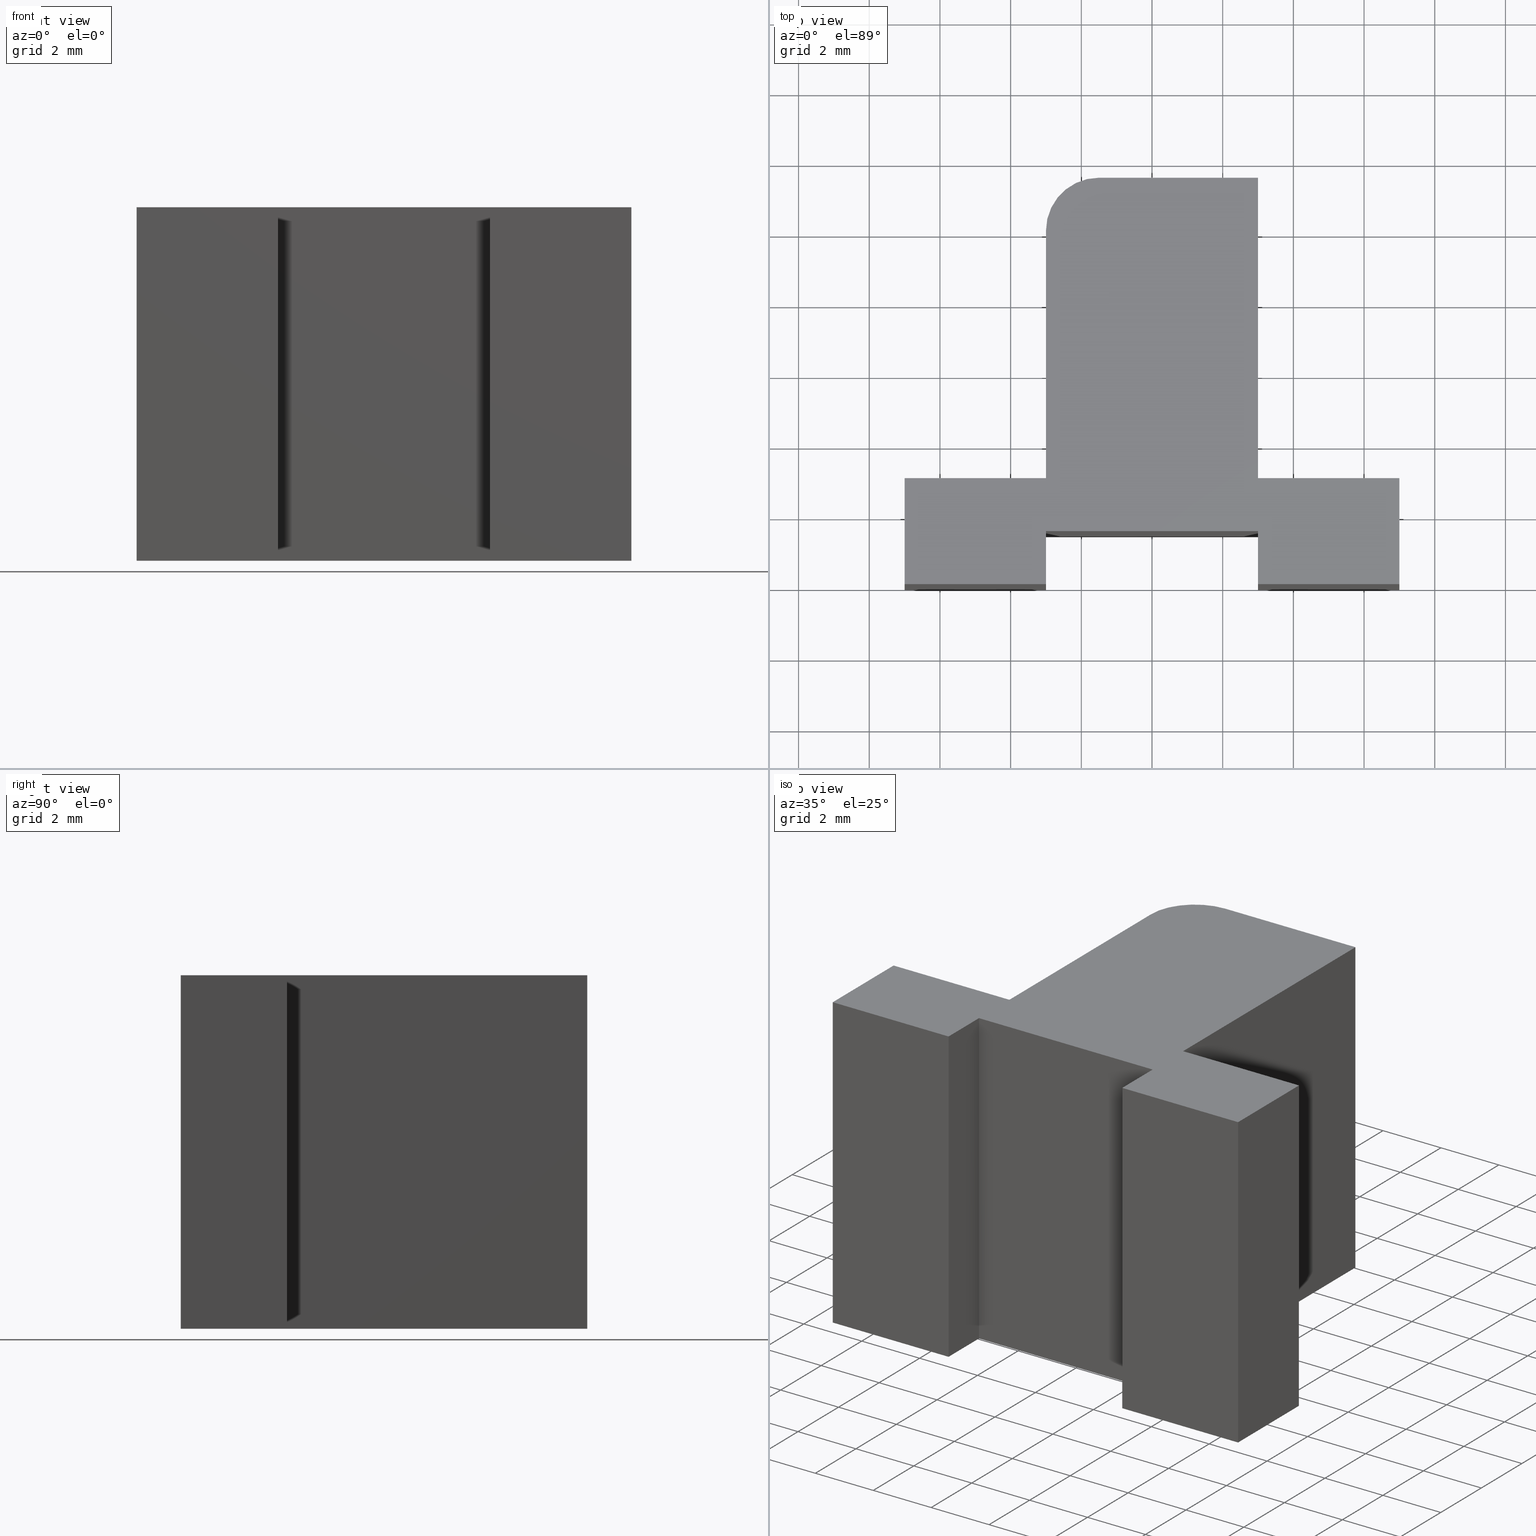
[diagram: canonical four-view strip — front | top / right | iso, engineering-drawing reading convention]
A machine part, canonical four-view strip (front | top / right | iso — engineering-drawing reading convention). The complete STEP part file that produces these views, byte-faithful:
ISO-10303-21;
HEADER;
/* Generated by software containing ST-Developer
 * from STEP Tools, Inc. (www.steptools.com) 
 */

FILE_DESCRIPTION(
/* description */ (''),
/* implementation_level */ '2;1');

FILE_NAME(
/* name */ 
'H:\\Eigene Dateien\\CAD Workspace Vault\\CAD\\E_3_Nocken\\E_3_01_Aufs
chwei\X\DFnocke\\01_Rund\\E_3_01_01_02_00_WKZ-0207.stp',
/* time_stamp */ '2024-05-16T11:08:24+02:00',
/* author */ ('dfischer'),
/* organization */ (''),
/* preprocessor_version */ 'ST-DEVELOPER v18.1',
/* originating_system */ 'Autodesk Inventor 2021',
/* authorisation */ '');

FILE_SCHEMA (('AUTOMOTIVE_DESIGN { 1 0 10303 214 3 1 1 }'));
ENDSEC;

DATA;
#10=MECHANICAL_DESIGN_GEOMETRIC_PRESENTATION_REPRESENTATION('',(#13),#488);
#11=SHAPE_REPRESENTATION_RELATIONSHIP('SRR','None',#495,#12);
#12=ADVANCED_BREP_SHAPE_REPRESENTATION('',(#14),#487);
#13=STYLED_ITEM('',(#504),#14);
#14=MANIFOLD_SOLID_BREP('Volumenk\X\F6rper1',#294);
#15=CYLINDRICAL_SURFACE('',#323,1.5);
#16=FACE_OUTER_BOUND('',#31,.T.);
#17=FACE_OUTER_BOUND('',#32,.T.);
#18=FACE_OUTER_BOUND('',#33,.T.);
#19=FACE_OUTER_BOUND('',#34,.T.);
#20=FACE_OUTER_BOUND('',#35,.T.);
#21=FACE_OUTER_BOUND('',#36,.T.);
#22=FACE_OUTER_BOUND('',#37,.T.);
#23=FACE_OUTER_BOUND('',#38,.T.);
#24=FACE_OUTER_BOUND('',#39,.T.);
#25=FACE_OUTER_BOUND('',#40,.T.);
#26=FACE_OUTER_BOUND('',#41,.T.);
#27=FACE_OUTER_BOUND('',#42,.T.);
#28=FACE_OUTER_BOUND('',#43,.T.);
#29=FACE_OUTER_BOUND('',#44,.T.);
#30=FACE_OUTER_BOUND('',#45,.T.);
#31=EDGE_LOOP('',(#187,#188,#189,#190,#191,#192,#193,#194,#195,#196,#197,
#198,#199));
#32=EDGE_LOOP('',(#200,#201,#202,#203));
#33=EDGE_LOOP('',(#204,#205,#206,#207));
#34=EDGE_LOOP('',(#208,#209,#210,#211));
#35=EDGE_LOOP('',(#212,#213,#214,#215));
#36=EDGE_LOOP('',(#216,#217,#218,#219));
#37=EDGE_LOOP('',(#220,#221,#222,#223));
#38=EDGE_LOOP('',(#224,#225,#226,#227));
#39=EDGE_LOOP('',(#228,#229,#230,#231));
#40=EDGE_LOOP('',(#232,#233,#234,#235));
#41=EDGE_LOOP('',(#236,#237,#238,#239));
#42=EDGE_LOOP('',(#240,#241,#242,#243));
#43=EDGE_LOOP('',(#244,#245,#246,#247));
#44=EDGE_LOOP('',(#248,#249,#250,#251));
#45=EDGE_LOOP('',(#252,#253,#254,#255,#256,#257,#258,#259,#260,#261,#262,
#263,#264));
#46=CIRCLE('',#315,1.5);
#47=CIRCLE('',#324,1.5);
#48=LINE('',#408,#85);
#49=LINE('',#410,#86);
#50=LINE('',#412,#87);
#51=LINE('',#414,#88);
#52=LINE('',#416,#89);
#53=LINE('',#418,#90);
#54=LINE('',#420,#91);
#55=LINE('',#422,#92);
#56=LINE('',#424,#93);
#57=LINE('',#428,#94);
#58=LINE('',#430,#95);
#59=LINE('',#431,#96);
#60=LINE('',#435,#97);
#61=LINE('',#436,#98);
#62=LINE('',#437,#99);
#63=LINE('',#440,#100);
#64=LINE('',#441,#101);
#65=LINE('',#444,#102);
#66=LINE('',#445,#103);
#67=LINE('',#448,#104);
#68=LINE('',#449,#105);
#69=LINE('',#452,#106);
#70=LINE('',#453,#107);
#71=LINE('',#456,#108);
#72=LINE('',#457,#109);
#73=LINE('',#460,#110);
#74=LINE('',#461,#111);
#75=LINE('',#465,#112);
#76=LINE('',#468,#113);
#77=LINE('',#469,#114);
#78=LINE('',#472,#115);
#79=LINE('',#473,#116);
#80=LINE('',#476,#117);
#81=LINE('',#477,#118);
#82=LINE('',#480,#119);
#83=LINE('',#481,#120);
#84=LINE('',#483,#121);
#85=VECTOR('',#335,10.);
#86=VECTOR('',#336,10.);
#87=VECTOR('',#337,10.);
#88=VECTOR('',#338,10.);
#89=VECTOR('',#339,10.);
#90=VECTOR('',#340,10.);
#91=VECTOR('',#341,10.);
#92=VECTOR('',#342,10.);
#93=VECTOR('',#343,10.);
#94=VECTOR('',#346,10.);
#95=VECTOR('',#347,10.);
#96=VECTOR('',#348,10.);
#97=VECTOR('',#351,10.);
#98=VECTOR('',#352,10.);
#99=VECTOR('',#353,10.);
#100=VECTOR('',#356,10.);
#101=VECTOR('',#357,10.);
#102=VECTOR('',#360,10.);
#103=VECTOR('',#361,10.);
#104=VECTOR('',#364,10.);
#105=VECTOR('',#365,10.);
#106=VECTOR('',#368,10.);
#107=VECTOR('',#369,10.);
#108=VECTOR('',#372,10.);
#109=VECTOR('',#373,10.);
#110=VECTOR('',#376,10.);
#111=VECTOR('',#377,10.);
#112=VECTOR('',#382,10.);
#113=VECTOR('',#385,10.);
#114=VECTOR('',#386,10.);
#115=VECTOR('',#389,10.);
#116=VECTOR('',#390,10.);
#117=VECTOR('',#393,10.);
#118=VECTOR('',#394,10.);
#119=VECTOR('',#397,10.);
#120=VECTOR('',#398,10.);
#121=VECTOR('',#401,10.);
#122=VERTEX_POINT('',#406);
#123=VERTEX_POINT('',#407);
#124=VERTEX_POINT('',#409);
#125=VERTEX_POINT('',#411);
#126=VERTEX_POINT('',#413);
#127=VERTEX_POINT('',#415);
#128=VERTEX_POINT('',#417);
#129=VERTEX_POINT('',#419);
#130=VERTEX_POINT('',#421);
#131=VERTEX_POINT('',#423);
#132=VERTEX_POINT('',#425);
#133=VERTEX_POINT('',#427);
#134=VERTEX_POINT('',#429);
#135=VERTEX_POINT('',#433);
#136=VERTEX_POINT('',#434);
#137=VERTEX_POINT('',#439);
#138=VERTEX_POINT('',#443);
#139=VERTEX_POINT('',#447);
#140=VERTEX_POINT('',#451);
#141=VERTEX_POINT('',#455);
#142=VERTEX_POINT('',#459);
#143=VERTEX_POINT('',#463);
#144=VERTEX_POINT('',#467);
#145=VERTEX_POINT('',#471);
#146=VERTEX_POINT('',#475);
#147=VERTEX_POINT('',#479);
#148=EDGE_CURVE('',#122,#123,#48,.T.);
#149=EDGE_CURVE('',#124,#122,#49,.T.);
#150=EDGE_CURVE('',#125,#124,#50,.T.);
#151=EDGE_CURVE('',#126,#125,#51,.T.);
#152=EDGE_CURVE('',#127,#126,#52,.T.);
#153=EDGE_CURVE('',#128,#127,#53,.T.);
#154=EDGE_CURVE('',#129,#128,#54,.T.);
#155=EDGE_CURVE('',#130,#129,#55,.T.);
#156=EDGE_CURVE('',#131,#130,#56,.T.);
#157=EDGE_CURVE('',#132,#131,#46,.T.);
#158=EDGE_CURVE('',#133,#132,#57,.T.);
#159=EDGE_CURVE('',#134,#133,#58,.T.);
#160=EDGE_CURVE('',#123,#134,#59,.T.);
#161=EDGE_CURVE('',#135,#136,#60,.T.);
#162=EDGE_CURVE('',#136,#125,#61,.T.);
#163=EDGE_CURVE('',#135,#124,#62,.T.);
#164=EDGE_CURVE('',#136,#137,#63,.T.);
#165=EDGE_CURVE('',#137,#126,#64,.T.);
#166=EDGE_CURVE('',#137,#138,#65,.T.);
#167=EDGE_CURVE('',#138,#127,#66,.T.);
#168=EDGE_CURVE('',#138,#139,#67,.T.);
#169=EDGE_CURVE('',#139,#128,#68,.T.);
#170=EDGE_CURVE('',#139,#140,#69,.T.);
#171=EDGE_CURVE('',#140,#129,#70,.T.);
#172=EDGE_CURVE('',#140,#141,#71,.T.);
#173=EDGE_CURVE('',#141,#130,#72,.T.);
#174=EDGE_CURVE('',#141,#142,#73,.T.);
#175=EDGE_CURVE('',#142,#131,#74,.T.);
#176=EDGE_CURVE('',#142,#143,#47,.T.);
#177=EDGE_CURVE('',#143,#132,#75,.T.);
#178=EDGE_CURVE('',#143,#144,#76,.T.);
#179=EDGE_CURVE('',#144,#133,#77,.T.);
#180=EDGE_CURVE('',#144,#145,#78,.T.);
#181=EDGE_CURVE('',#145,#134,#79,.T.);
#182=EDGE_CURVE('',#145,#146,#80,.T.);
#183=EDGE_CURVE('',#146,#123,#81,.T.);
#184=EDGE_CURVE('',#146,#147,#82,.T.);
#185=EDGE_CURVE('',#122,#147,#83,.T.);
#186=EDGE_CURVE('',#147,#135,#84,.T.);
#187=ORIENTED_EDGE('',*,*,#148,.F.);
#188=ORIENTED_EDGE('',*,*,#149,.F.);
#189=ORIENTED_EDGE('',*,*,#150,.F.);
#190=ORIENTED_EDGE('',*,*,#151,.F.);
#191=ORIENTED_EDGE('',*,*,#152,.F.);
#192=ORIENTED_EDGE('',*,*,#153,.F.);
#193=ORIENTED_EDGE('',*,*,#154,.F.);
#194=ORIENTED_EDGE('',*,*,#155,.F.);
#195=ORIENTED_EDGE('',*,*,#156,.F.);
#196=ORIENTED_EDGE('',*,*,#157,.F.);
#197=ORIENTED_EDGE('',*,*,#158,.F.);
#198=ORIENTED_EDGE('',*,*,#159,.F.);
#199=ORIENTED_EDGE('',*,*,#160,.F.);
#200=ORIENTED_EDGE('',*,*,#161,.T.);
#201=ORIENTED_EDGE('',*,*,#162,.T.);
#202=ORIENTED_EDGE('',*,*,#150,.T.);
#203=ORIENTED_EDGE('',*,*,#163,.F.);
#204=ORIENTED_EDGE('',*,*,#164,.T.);
#205=ORIENTED_EDGE('',*,*,#165,.T.);
#206=ORIENTED_EDGE('',*,*,#151,.T.);
#207=ORIENTED_EDGE('',*,*,#162,.F.);
#208=ORIENTED_EDGE('',*,*,#166,.T.);
#209=ORIENTED_EDGE('',*,*,#167,.T.);
#210=ORIENTED_EDGE('',*,*,#152,.T.);
#211=ORIENTED_EDGE('',*,*,#165,.F.);
#212=ORIENTED_EDGE('',*,*,#168,.T.);
#213=ORIENTED_EDGE('',*,*,#169,.T.);
#214=ORIENTED_EDGE('',*,*,#153,.T.);
#215=ORIENTED_EDGE('',*,*,#167,.F.);
#216=ORIENTED_EDGE('',*,*,#170,.T.);
#217=ORIENTED_EDGE('',*,*,#171,.T.);
#218=ORIENTED_EDGE('',*,*,#154,.T.);
#219=ORIENTED_EDGE('',*,*,#169,.F.);
#220=ORIENTED_EDGE('',*,*,#172,.T.);
#221=ORIENTED_EDGE('',*,*,#173,.T.);
#222=ORIENTED_EDGE('',*,*,#155,.T.);
#223=ORIENTED_EDGE('',*,*,#171,.F.);
#224=ORIENTED_EDGE('',*,*,#174,.T.);
#225=ORIENTED_EDGE('',*,*,#175,.T.);
#226=ORIENTED_EDGE('',*,*,#156,.T.);
#227=ORIENTED_EDGE('',*,*,#173,.F.);
#228=ORIENTED_EDGE('',*,*,#176,.T.);
#229=ORIENTED_EDGE('',*,*,#177,.T.);
#230=ORIENTED_EDGE('',*,*,#157,.T.);
#231=ORIENTED_EDGE('',*,*,#175,.F.);
#232=ORIENTED_EDGE('',*,*,#178,.T.);
#233=ORIENTED_EDGE('',*,*,#179,.T.);
#234=ORIENTED_EDGE('',*,*,#158,.T.);
#235=ORIENTED_EDGE('',*,*,#177,.F.);
#236=ORIENTED_EDGE('',*,*,#180,.T.);
#237=ORIENTED_EDGE('',*,*,#181,.T.);
#238=ORIENTED_EDGE('',*,*,#159,.T.);
#239=ORIENTED_EDGE('',*,*,#179,.F.);
#240=ORIENTED_EDGE('',*,*,#182,.T.);
#241=ORIENTED_EDGE('',*,*,#183,.T.);
#242=ORIENTED_EDGE('',*,*,#160,.T.);
#243=ORIENTED_EDGE('',*,*,#181,.F.);
#244=ORIENTED_EDGE('',*,*,#184,.T.);
#245=ORIENTED_EDGE('',*,*,#185,.F.);
#246=ORIENTED_EDGE('',*,*,#148,.T.);
#247=ORIENTED_EDGE('',*,*,#183,.F.);
#248=ORIENTED_EDGE('',*,*,#186,.T.);
#249=ORIENTED_EDGE('',*,*,#163,.T.);
#250=ORIENTED_EDGE('',*,*,#149,.T.);
#251=ORIENTED_EDGE('',*,*,#185,.T.);
#252=ORIENTED_EDGE('',*,*,#161,.F.);
#253=ORIENTED_EDGE('',*,*,#186,.F.);
#254=ORIENTED_EDGE('',*,*,#184,.F.);
#255=ORIENTED_EDGE('',*,*,#182,.F.);
#256=ORIENTED_EDGE('',*,*,#180,.F.);
#257=ORIENTED_EDGE('',*,*,#178,.F.);
#258=ORIENTED_EDGE('',*,*,#176,.F.);
#259=ORIENTED_EDGE('',*,*,#174,.F.);
#260=ORIENTED_EDGE('',*,*,#172,.F.);
#261=ORIENTED_EDGE('',*,*,#170,.F.);
#262=ORIENTED_EDGE('',*,*,#168,.F.);
#263=ORIENTED_EDGE('',*,*,#166,.F.);
#264=ORIENTED_EDGE('',*,*,#164,.F.);
#265=PLANE('',#314);
#266=PLANE('',#316);
#267=PLANE('',#317);
#268=PLANE('',#318);
#269=PLANE('',#319);
#270=PLANE('',#320);
#271=PLANE('',#321);
#272=PLANE('',#322);
#273=PLANE('',#325);
#274=PLANE('',#326);
#275=PLANE('',#327);
#276=PLANE('',#328);
#277=PLANE('',#329);
#278=PLANE('',#330);
#279=ADVANCED_FACE('',(#16),#265,.F.);
#280=ADVANCED_FACE('',(#17),#266,.T.);
#281=ADVANCED_FACE('',(#18),#267,.T.);
#282=ADVANCED_FACE('',(#19),#268,.T.);
#283=ADVANCED_FACE('',(#20),#269,.T.);
#284=ADVANCED_FACE('',(#21),#270,.T.);
#285=ADVANCED_FACE('',(#22),#271,.T.);
#286=ADVANCED_FACE('',(#23),#272,.T.);
#287=ADVANCED_FACE('',(#24),#15,.T.);
#288=ADVANCED_FACE('',(#25),#273,.T.);
#289=ADVANCED_FACE('',(#26),#274,.T.);
#290=ADVANCED_FACE('',(#27),#275,.T.);
#291=ADVANCED_FACE('',(#28),#276,.T.);
#292=ADVANCED_FACE('',(#29),#277,.T.);
#293=ADVANCED_FACE('',(#30),#278,.T.);
#294=CLOSED_SHELL('',(#279,#280,#281,#282,#283,#284,#285,#286,#287,#288,
#289,#290,#291,#292,#293));
#295=DERIVED_UNIT_ELEMENT(#297,1.);
#296=DERIVED_UNIT_ELEMENT(#490,3.);
#297=(
MASS_UNIT()
NAMED_UNIT(*)
SI_UNIT($,.GRAM.)
);
#298=DERIVED_UNIT((#295,#296));
#299=MEASURE_REPRESENTATION_ITEM('density measure',
POSITIVE_RATIO_MEASURE(8.03),#298);
#300=PROPERTY_DEFINITION_REPRESENTATION(#305,#302);
#301=PROPERTY_DEFINITION_REPRESENTATION(#306,#303);
#302=REPRESENTATION('material name',(#304),#487);
#303=REPRESENTATION('density',(#299),#487);
#304=DESCRIPTIVE_REPRESENTATION_ITEM('1.4301','1.4301');
#305=PROPERTY_DEFINITION('material property','material name',#497);
#306=PROPERTY_DEFINITION('material property','density of part',#497);
#307=DATE_TIME_ROLE('creation_date');
#308=APPLIED_DATE_AND_TIME_ASSIGNMENT(#309,#307,(#497));
#309=DATE_AND_TIME(#310,#311);
#310=CALENDAR_DATE(2011,21,10);
#311=LOCAL_TIME(0,0,0.,#312);
#312=COORDINATED_UNIVERSAL_TIME_OFFSET(0,0,.BEHIND.);
#313=AXIS2_PLACEMENT_3D('placement',#404,#331,#332);
#314=AXIS2_PLACEMENT_3D('',#405,#333,#334);
#315=AXIS2_PLACEMENT_3D('',#426,#344,#345);
#316=AXIS2_PLACEMENT_3D('',#432,#349,#350);
#317=AXIS2_PLACEMENT_3D('',#438,#354,#355);
#318=AXIS2_PLACEMENT_3D('',#442,#358,#359);
#319=AXIS2_PLACEMENT_3D('',#446,#362,#363);
#320=AXIS2_PLACEMENT_3D('',#450,#366,#367);
#321=AXIS2_PLACEMENT_3D('',#454,#370,#371);
#322=AXIS2_PLACEMENT_3D('',#458,#374,#375);
#323=AXIS2_PLACEMENT_3D('',#462,#378,#379);
#324=AXIS2_PLACEMENT_3D('',#464,#380,#381);
#325=AXIS2_PLACEMENT_3D('',#466,#383,#384);
#326=AXIS2_PLACEMENT_3D('',#470,#387,#388);
#327=AXIS2_PLACEMENT_3D('',#474,#391,#392);
#328=AXIS2_PLACEMENT_3D('',#478,#395,#396);
#329=AXIS2_PLACEMENT_3D('',#482,#399,#400);
#330=AXIS2_PLACEMENT_3D('',#484,#402,#403);
#331=DIRECTION('axis',(0.,0.,1.));
#332=DIRECTION('refdir',(1.,0.,0.));
#333=DIRECTION('center_axis',(0.,0.,1.));
#334=DIRECTION('ref_axis',(1.,0.,0.));
#335=DIRECTION('',(0.,1.,0.));
#336=DIRECTION('',(1.,0.,0.));
#337=DIRECTION('',(0.,-1.,0.));
#338=DIRECTION('',(1.,0.,0.));
#339=DIRECTION('',(0.,1.,0.));
#340=DIRECTION('',(1.,0.,0.));
#341=DIRECTION('',(0.,-1.,0.));
#342=DIRECTION('',(-1.,-2.77555756156289E-16,0.));
#343=DIRECTION('',(0.,-1.,0.));
#344=DIRECTION('center_axis',(0.,0.,1.));
#345=DIRECTION('ref_axis',(-9.25185853854298E-16,-1.,0.));
#346=DIRECTION('',(-1.,0.,0.));
#347=DIRECTION('',(0.,1.,0.));
#348=DIRECTION('',(-1.,2.77555756156289E-16,0.));
#349=DIRECTION('center_axis',(-1.,0.,0.));
#350=DIRECTION('ref_axis',(0.,0.,1.));
#351=DIRECTION('',(0.,1.,0.));
#352=DIRECTION('',(0.,0.,-1.));
#353=DIRECTION('',(0.,0.,-1.));
#354=DIRECTION('center_axis',(0.,-1.,0.));
#355=DIRECTION('ref_axis',(0.,0.,-1.));
#356=DIRECTION('',(-1.,0.,0.));
#357=DIRECTION('',(0.,0.,-1.));
#358=DIRECTION('center_axis',(1.,0.,0.));
#359=DIRECTION('ref_axis',(0.,0.,-1.));
#360=DIRECTION('',(0.,-1.,0.));
#361=DIRECTION('',(0.,0.,-1.));
#362=DIRECTION('center_axis',(0.,-1.,0.));
#363=DIRECTION('ref_axis',(0.,0.,-1.));
#364=DIRECTION('',(-1.,0.,0.));
#365=DIRECTION('',(0.,0.,-1.));
#366=DIRECTION('center_axis',(-1.,0.,0.));
#367=DIRECTION('ref_axis',(0.,0.,1.));
#368=DIRECTION('',(0.,1.,0.));
#369=DIRECTION('',(0.,0.,-1.));
#370=DIRECTION('center_axis',(-2.77555756156289E-16,1.,0.));
#371=DIRECTION('ref_axis',(0.,0.,1.));
#372=DIRECTION('',(1.,2.77555756156289E-16,0.));
#373=DIRECTION('',(0.,0.,-1.));
#374=DIRECTION('center_axis',(-1.,0.,0.));
#375=DIRECTION('ref_axis',(0.,0.,1.));
#376=DIRECTION('',(0.,1.,0.));
#377=DIRECTION('',(0.,0.,-1.));
#378=DIRECTION('center_axis',(0.,0.,1.));
#379=DIRECTION('ref_axis',(-9.25185853854298E-16,-1.,0.));
#380=DIRECTION('center_axis',(0.,0.,-1.));
#381=DIRECTION('ref_axis',(-9.25185853854298E-16,-1.,0.));
#382=DIRECTION('',(0.,0.,-1.));
#383=DIRECTION('center_axis',(0.,1.,0.));
#384=DIRECTION('ref_axis',(0.,0.,1.));
#385=DIRECTION('',(1.,0.,0.));
#386=DIRECTION('',(0.,0.,-1.));
#387=DIRECTION('center_axis',(1.,0.,0.));
#388=DIRECTION('ref_axis',(0.,0.,-1.));
#389=DIRECTION('',(0.,-1.,0.));
#390=DIRECTION('',(0.,0.,-1.));
#391=DIRECTION('center_axis',(2.77555756156289E-16,1.,0.));
#392=DIRECTION('ref_axis',(0.,0.,1.));
#393=DIRECTION('',(1.,-2.77555756156289E-16,0.));
#394=DIRECTION('',(0.,0.,-1.));
#395=DIRECTION('center_axis',(1.,0.,0.));
#396=DIRECTION('ref_axis',(0.,0.,-1.));
#397=DIRECTION('',(0.,-1.,0.));
#398=DIRECTION('',(0.,0.,1.));
#399=DIRECTION('center_axis',(0.,-1.,0.));
#400=DIRECTION('ref_axis',(0.,0.,-1.));
#401=DIRECTION('',(-1.,0.,0.));
#402=DIRECTION('center_axis',(0.,0.,1.));
#403=DIRECTION('ref_axis',(1.,0.,0.));
#404=CARTESIAN_POINT('',(0.,0.,0.));
#405=CARTESIAN_POINT('Origin',(0.0400855353960883,4.28982695881489,-5.));
#406=CARTESIAN_POINT('',(7.,0.,-5.));
#407=CARTESIAN_POINT('',(7.,3.,-5.));
#408=CARTESIAN_POINT('',(7.,3.,-5.));
#409=CARTESIAN_POINT('',(3.,0.,-5.));
#410=CARTESIAN_POINT('',(7.,0.,-5.));
#411=CARTESIAN_POINT('',(3.,1.5,-5.));
#412=CARTESIAN_POINT('',(3.,0.,-5.));
#413=CARTESIAN_POINT('',(-3.,1.5,-5.));
#414=CARTESIAN_POINT('',(3.,1.5,-5.));
#415=CARTESIAN_POINT('',(-3.,0.,-5.));
#416=CARTESIAN_POINT('',(-3.,1.5,-5.));
#417=CARTESIAN_POINT('',(-7.,0.,-5.));
#418=CARTESIAN_POINT('',(-3.,0.,-5.));
#419=CARTESIAN_POINT('',(-7.,3.,-5.));
#420=CARTESIAN_POINT('',(-7.,0.,-5.));
#421=CARTESIAN_POINT('',(-3.,3.,-5.));
#422=CARTESIAN_POINT('',(-7.,3.,-5.));
#423=CARTESIAN_POINT('',(-3.,10.,-5.));
#424=CARTESIAN_POINT('',(-3.,3.,-5.));
#425=CARTESIAN_POINT('',(-1.5,11.5,-5.));
#426=CARTESIAN_POINT('Origin',(-1.5,10.,-5.));
#427=CARTESIAN_POINT('',(3.,11.5,-5.));
#428=CARTESIAN_POINT('',(-1.5,11.5,-5.));
#429=CARTESIAN_POINT('',(3.,3.,-5.));
#430=CARTESIAN_POINT('',(3.,11.5,-5.));
#431=CARTESIAN_POINT('',(3.,3.,-5.));
#432=CARTESIAN_POINT('Origin',(3.,0.,0.));
#433=CARTESIAN_POINT('',(3.,0.,5.));
#434=CARTESIAN_POINT('',(3.,1.5,5.));
#435=CARTESIAN_POINT('',(3.,0.,5.));
#436=CARTESIAN_POINT('',(3.,1.5,0.));
#437=CARTESIAN_POINT('',(3.,0.,0.));
#438=CARTESIAN_POINT('Origin',(3.,1.5,0.));
#439=CARTESIAN_POINT('',(-3.,1.5,5.));
#440=CARTESIAN_POINT('',(3.,1.5,5.));
#441=CARTESIAN_POINT('',(-3.,1.5,0.));
#442=CARTESIAN_POINT('Origin',(-3.,1.5,0.));
#443=CARTESIAN_POINT('',(-3.,0.,5.));
#444=CARTESIAN_POINT('',(-3.,1.5,5.));
#445=CARTESIAN_POINT('',(-3.,0.,0.));
#446=CARTESIAN_POINT('Origin',(-3.,0.,0.));
#447=CARTESIAN_POINT('',(-7.,0.,5.));
#448=CARTESIAN_POINT('',(-3.,0.,5.));
#449=CARTESIAN_POINT('',(-7.,0.,0.));
#450=CARTESIAN_POINT('Origin',(-7.,0.,0.));
#451=CARTESIAN_POINT('',(-7.,3.,5.));
#452=CARTESIAN_POINT('',(-7.,0.,5.));
#453=CARTESIAN_POINT('',(-7.,3.,0.));
#454=CARTESIAN_POINT('Origin',(-7.,3.,0.));
#455=CARTESIAN_POINT('',(-3.,3.,5.));
#456=CARTESIAN_POINT('',(-7.,3.,5.));
#457=CARTESIAN_POINT('',(-3.,3.,0.));
#458=CARTESIAN_POINT('Origin',(-3.,3.,0.));
#459=CARTESIAN_POINT('',(-3.,10.,5.));
#460=CARTESIAN_POINT('',(-3.,3.,5.));
#461=CARTESIAN_POINT('',(-3.,10.,0.));
#462=CARTESIAN_POINT('Origin',(-1.5,10.,0.));
#463=CARTESIAN_POINT('',(-1.5,11.5,5.));
#464=CARTESIAN_POINT('Origin',(-1.5,10.,5.));
#465=CARTESIAN_POINT('',(-1.5,11.5,0.));
#466=CARTESIAN_POINT('Origin',(-1.5,11.5,0.));
#467=CARTESIAN_POINT('',(3.,11.5,5.));
#468=CARTESIAN_POINT('',(-1.5,11.5,5.));
#469=CARTESIAN_POINT('',(3.,11.5,0.));
#470=CARTESIAN_POINT('Origin',(3.,11.5,0.));
#471=CARTESIAN_POINT('',(3.,3.,5.));
#472=CARTESIAN_POINT('',(3.,11.5,5.));
#473=CARTESIAN_POINT('',(3.,3.,0.));
#474=CARTESIAN_POINT('Origin',(3.,3.,0.));
#475=CARTESIAN_POINT('',(7.,3.,5.));
#476=CARTESIAN_POINT('',(3.,3.,5.));
#477=CARTESIAN_POINT('',(7.,3.,0.));
#478=CARTESIAN_POINT('Origin',(7.,3.,0.));
#479=CARTESIAN_POINT('',(7.,0.,5.));
#480=CARTESIAN_POINT('',(7.,3.,5.));
#481=CARTESIAN_POINT('',(7.,0.,0.));
#482=CARTESIAN_POINT('Origin',(7.,0.,0.));
#483=CARTESIAN_POINT('',(7.,0.,5.));
#484=CARTESIAN_POINT('Origin',(0.0400855353960885,4.28982695881489,5.));
#485=UNCERTAINTY_MEASURE_WITH_UNIT(LENGTH_MEASURE(0.01),#489,
'DISTANCE_ACCURACY_VALUE',
'Maximum model space distance between geometric entities at asserted c
onnectivities');
#486=UNCERTAINTY_MEASURE_WITH_UNIT(LENGTH_MEASURE(0.01),#489,
'DISTANCE_ACCURACY_VALUE',
'Maximum model space distance between geometric entities at asserted c
onnectivities');
#487=(
GEOMETRIC_REPRESENTATION_CONTEXT(3)
GLOBAL_UNCERTAINTY_ASSIGNED_CONTEXT((#485))
GLOBAL_UNIT_ASSIGNED_CONTEXT((#489,#491,#492))
REPRESENTATION_CONTEXT('','3D')
);
#488=(
GEOMETRIC_REPRESENTATION_CONTEXT(3)
GLOBAL_UNCERTAINTY_ASSIGNED_CONTEXT((#486))
GLOBAL_UNIT_ASSIGNED_CONTEXT((#489,#491,#492))
REPRESENTATION_CONTEXT('','3D')
);
#489=(
LENGTH_UNIT()
NAMED_UNIT(*)
SI_UNIT(.MILLI.,.METRE.)
);
#490=(
LENGTH_UNIT()
NAMED_UNIT(*)
SI_UNIT(.CENTI.,.METRE.)
);
#491=(
NAMED_UNIT(*)
PLANE_ANGLE_UNIT()
SI_UNIT($,.RADIAN.)
);
#492=(
NAMED_UNIT(*)
SI_UNIT($,.STERADIAN.)
SOLID_ANGLE_UNIT()
);
#493=SHAPE_DEFINITION_REPRESENTATION(#494,#495);
#494=PRODUCT_DEFINITION_SHAPE('',$,#497);
#495=SHAPE_REPRESENTATION('',(#313),#487);
#496=PRODUCT_DEFINITION_CONTEXT('part definition',#501,'design');
#497=PRODUCT_DEFINITION('WKZ-0207','E_3_01_01_02_00_WKZ-0207',#498,#496);
#498=PRODUCT_DEFINITION_FORMATION('',$,#503);
#499=PRODUCT_RELATED_PRODUCT_CATEGORY('E_3_01_01_02_00_WKZ-0207',
'E_3_01_01_02_00_WKZ-0207',(#503));
#500=APPLICATION_PROTOCOL_DEFINITION('international standard',
'automotive_design',2009,#501);
#501=APPLICATION_CONTEXT(
'Core Data for Automotive Mechanical Design Process');
#502=PRODUCT_CONTEXT('part definition',#501,'mechanical');
#503=PRODUCT('WKZ-0207','E_3_01_01_02_00_WKZ-0207',$,(#502));
#504=PRESENTATION_STYLE_ASSIGNMENT((#505));
#505=SURFACE_STYLE_USAGE(.BOTH.,#508);
#506=SURFACE_STYLE_RENDERING_WITH_PROPERTIES($,#512,(#507));
#507=SURFACE_STYLE_TRANSPARENT(0.);
#508=SURFACE_SIDE_STYLE('',(#509,#506));
#509=SURFACE_STYLE_FILL_AREA(#510);
#510=FILL_AREA_STYLE('',(#511));
#511=FILL_AREA_STYLE_COLOUR('',#512);
#512=COLOUR_RGB('',0.92156862745098,0.92156862745098,0.92156862745098);
ENDSEC;
END-ISO-10303-21;
